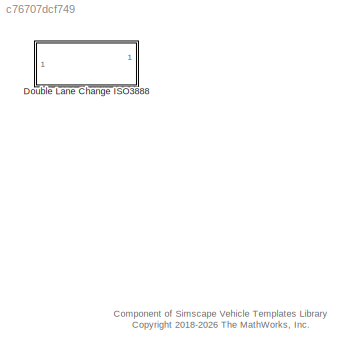
MODEL slx_c76707dcf749
KIND library
CONFIG SolverName = VariableStepAuto
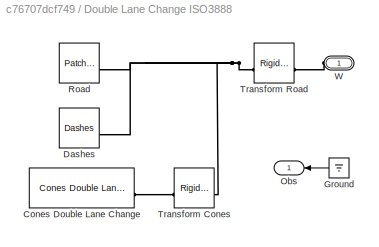
BLOCK [SubSystem] Double Lane Change ISO3888
BLOCK [Reference] Double Lane Change ISO3888/Cones Double Lane Change  REF=sm_car_lib/Environment/Cones Double Lane Change  (lib defined in slx_05426f0848b6, slx_5dc2867fb1c9)
  SourceBlock = sm_car_lib/Environment/Cones Double Lane Change
BLOCK [Reference] Double Lane Change ISO3888/Dashes  REF=sm_car_lib/Environment/Dashes  (lib defined in slx_05426f0848b6, slx_5dc2867fb1c9)
  SourceBlock = sm_car_lib/Environment/Dashes
BLOCK [Ground] Double Lane Change ISO3888/Ground
  NameLocation = top
BLOCK [Outport] Double Lane Change ISO3888/Obs
  VectorParamsAs1DForOutWhenUnconnected = off
BLOCK [Reference] Double Lane Change ISO3888/Road  REF=sm_car_lib/Environment/Patch Rectangle  (lib defined in slx_05426f0848b6, slx_5dc2867fb1c9)
  SourceBlock = sm_car_lib/Environment/Patch Rectangle
BLOCK [Reference] Double Lane Change ISO3888/Transform Cones  REF=sm_lib/Frames and
Transforms/Rigid
Transform
  SourceBlock = sm_lib/Frames and\nTransforms/Rigid\nTransform
  SourceType = Rigid\nTransform
BLOCK [Reference] Double Lane Change ISO3888/Transform Road  REF=sm_lib/Frames and
Transforms/Rigid
Transform
  SourceBlock = sm_lib/Frames and\nTransforms/Rigid\nTransform
  SourceType = Rigid\nTransform
BLOCK [PMIOPort] Double Lane Change ISO3888/W
  NameLocation = top
  Side = Left
ANNOTATION (root): Component of Simscape Vehicle Templates Library <copyright redacted>
LINE Double Lane Change ISO3888/Ground:1 -> Double Lane Change ISO3888/Obs:1
PLINE Double Lane Change ISO3888/Cones Double Lane Change:LConn1 -- Double Lane Change ISO3888/Transform Cones:RConn1
PNET net1: Double Lane Change ISO3888/Dashes:LConn1 -- Double Lane Change ISO3888/Road:RConn1 -- Double Lane Change ISO3888/Transform Cones:LConn1 -- Double Lane Change ISO3888/Transform Road:RConn1
PLINE Double Lane Change ISO3888/Transform Road:LConn1 -- Double Lane Change ISO3888/W:RConn1
note: PNET lines group multi-terminal physical nets as a canonical sorted terminal list (undirected conserving connections); 2-terminal nets keep the pairwise PLINE form
